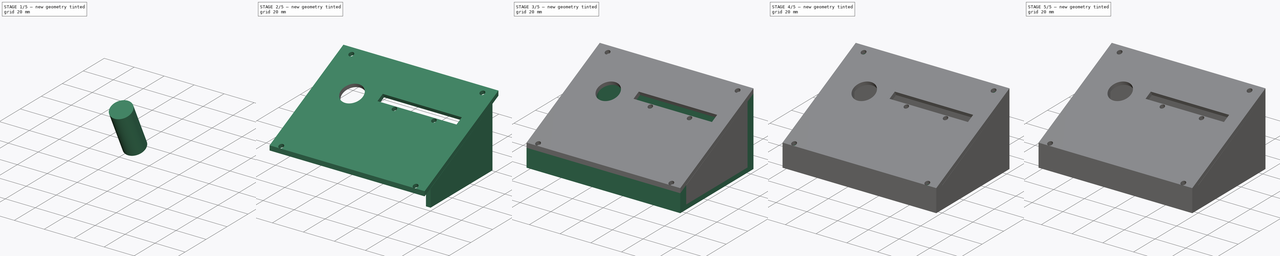
[diagram: build sequence overview — one tinted view per stage of 5, left to right]
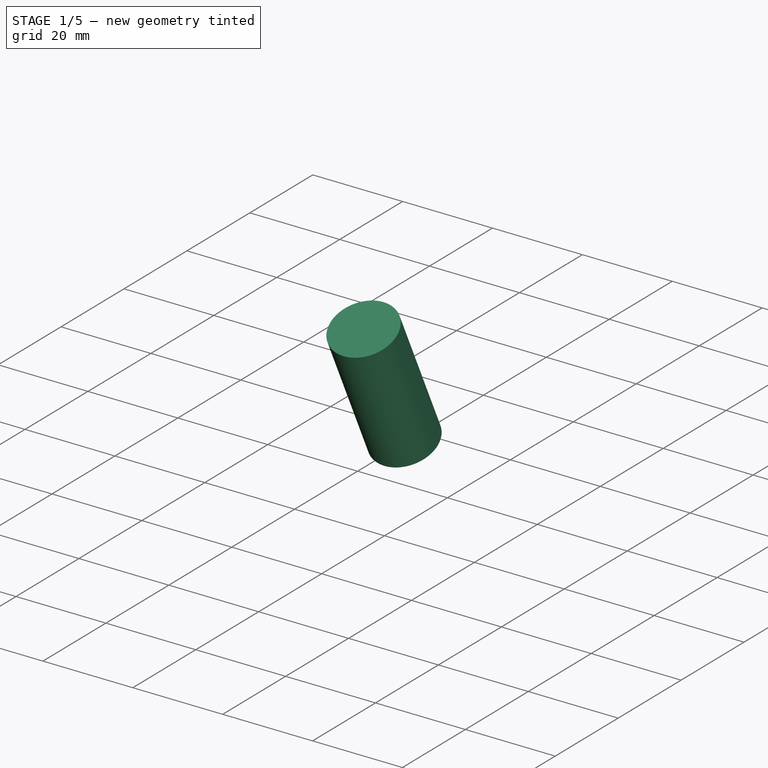
[diagram: stage 1 of 5 — iso view after this stage's code; geometry added in this stage tinted green]
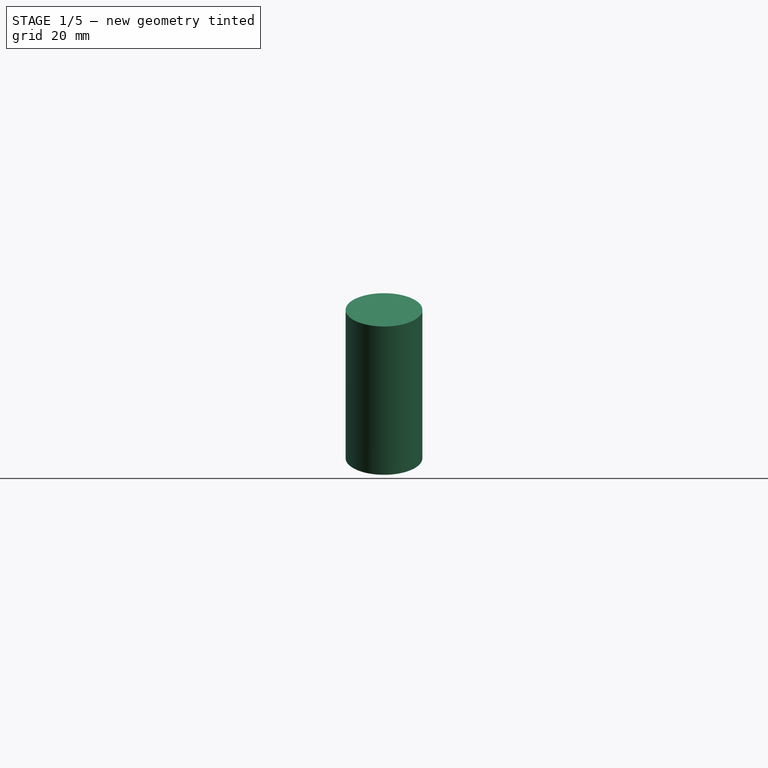
[diagram: stage 1 of 5 — front view after this stage's code; geometry added in this stage tinted green]
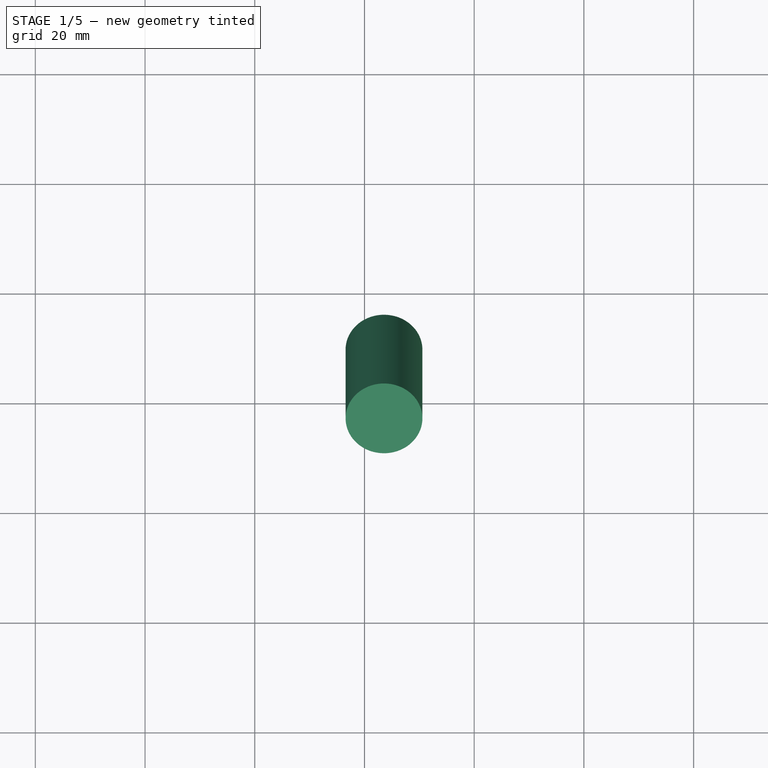
[diagram: stage 1 of 5 — top view after this stage's code; geometry added in this stage tinted green]
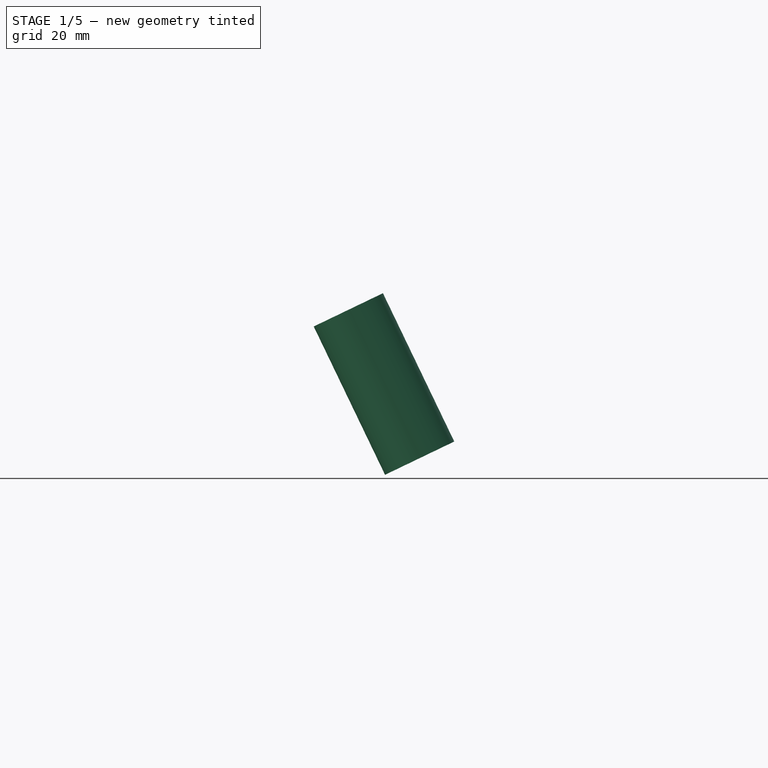
[diagram: stage 1 of 5 — right view after this stage's code; geometry added in this stage tinted green]
FCSTD DOCUMENT  (FreeCAD 0.20R29410 (Git))
Label: caja_botones
License: All rights reserved
LicenseURL: http://en.wikipedia.org/wiki/All_rights_reserved
objects: Part::Extrusion×11, Sketcher::SketchObject×10, Part::Cut×7, Part::MultiFuse×1, Part::Feature×1
note: 30 computed .brp shape members not serialized (recipe doc carries the construction recipe); baked Part::Feature solids carry a one-line shape summary decoded from their .brp

FEATURE [Sketcher::SketchObject] Sketch006
  FullyConstrained = false
  Placement = pos=(0,0,0) rot=(0.57735,0.57735,0.57735;2.0944rad)
  sketch-geometry (4):
    g0: LineSegment StartX=-65.4528 StartY=5.76 StartZ=0 EndX=2.54715 EndY=38.46 EndZ=0
    g1: LineSegment StartX=2.54715 StartY=38.46 StartZ=0 EndX=2.54715 EndY=41.46 EndZ=0
    g2: LineSegment StartX=2.54715 StartY=41.46 StartZ=0 EndX=-65.4528 EndY=8.76 EndZ=0
    g3: LineSegment StartX=-65.4528 StartY=8.76 StartZ=0 EndX=-65.4528 EndY=5.76 EndZ=0
  constraints (10):
    c: Coincident(g0,g1)
    c: Vertical(g1)
    c: Coincident(g1,g2)
    c: Coincident(g2,g3)
    c: Vertical(g3)
    c: Coincident(g0,g3)
    c: DistanceY(g-1,g0) = 38.46
    c: Parallel(g2,g0)
    c: Distance(g0,g-1) = 5.76
    c: DistanceY(g3,g3) = 3
FEATURE [Part::Extrusion] Extrude007
  Base = -> Sketch006
  Dir = (1,0,0)
  DirMode = 2
  FaceMakerClass = Part::FaceMakerBullseye
  LengthFwd = 100
  LengthRev = 0
  Solid = true
  Symmetric = false
FEATURE [Sketcher::SketchObject] Sketch007
  FullyConstrained = false
  MapMode = 5
  Placement = pos=(0,-15.7144,32.6783) rot=(1,0,0;0.448237rad)
  Support = -> [Extrude007]
  sketch-geometry (4):
    g0: Circle CenterX=92.3598 CenterY=15.964 CenterZ=0 NormalX=0 NormalY=0 NormalZ=1 AngleXU=0 Radius=1.6
    g1: Circle CenterX=7.88047 CenterY=15.8458 CenterZ=0 NormalX=0 NormalY=0 NormalZ=1 AngleXU=0 Radius=1.6
    g2: Circle CenterX=6.4889 CenterY=-53.5733 CenterZ=0 NormalX=0 NormalY=0 NormalZ=1 AngleXU=0 Radius=1.6
    g3: Circle CenterX=93.2182 CenterY=-53.6813 CenterZ=0 NormalX=0 NormalY=0 NormalZ=1 AngleXU=0 Radius=1.6
  constraints (2):
    c: Diameter(g0) = 3.2
    c: Equal(g0,g1) = 3.2
FEATURE [Part::Extrusion] Extrude008
  Base = -> Sketch007
  Dir = (0,-0.433377,0.901213)
  DirMode = 2
  FaceMakerClass = Part::FaceMakerBullseye
  LengthFwd = 10
  LengthRev = 0
  Solid = true
  Symmetric = true
FEATURE [Part::Cut] Cut004
  Base = -> Extrude007
  Tool = -> Extrude008
FEATURE [Sketcher::SketchObject] Sketch008
  FullyConstrained = false
  MapMode = 5
  Placement = pos=(0,-15.7144,32.6783) rot=(1,0,0;0.448237rad)
  Support = -> [Cut004]
  sketch-geometry (1):
    g0: Circle CenterX=23.5592 CenterY=-8.28634 CenterZ=0 NormalX=0 NormalY=0 NormalZ=1 AngleXU=0 Radius=7
  constraints (1):
    c: Diameter(g0) = 14
FEATURE [Part::Extrusion] Extrude009
  Base = -> Sketch008
  Dir = (0,-0.433377,0.901213)
  DirMode = 2
  FaceMakerClass = Part::FaceMakerBullseye
  LengthFwd = -30
  LengthRev = 0
  Solid = true
  Symmetric = false
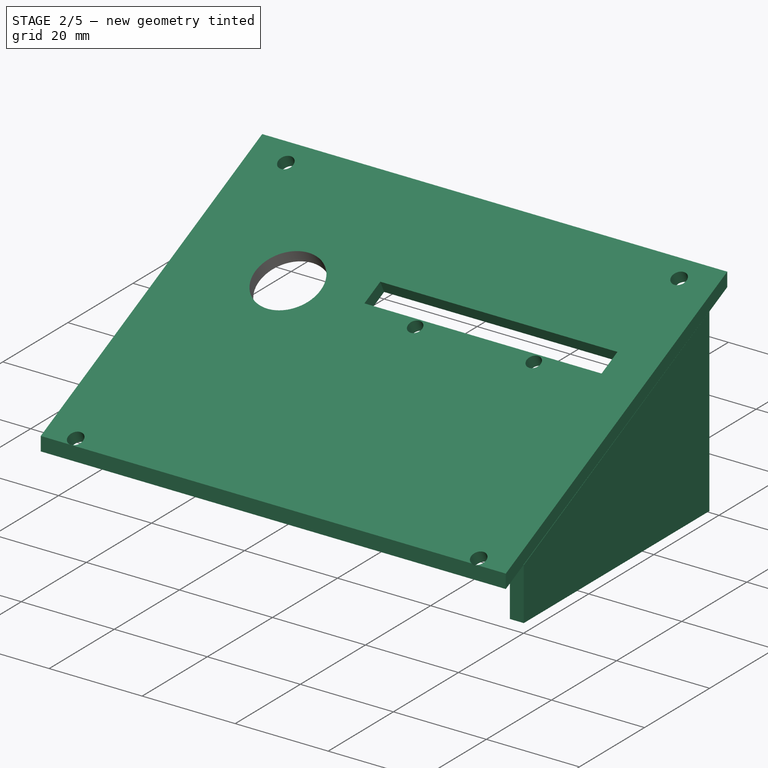
[diagram: stage 2 of 5 — iso view after this stage's code; geometry added in this stage tinted green]
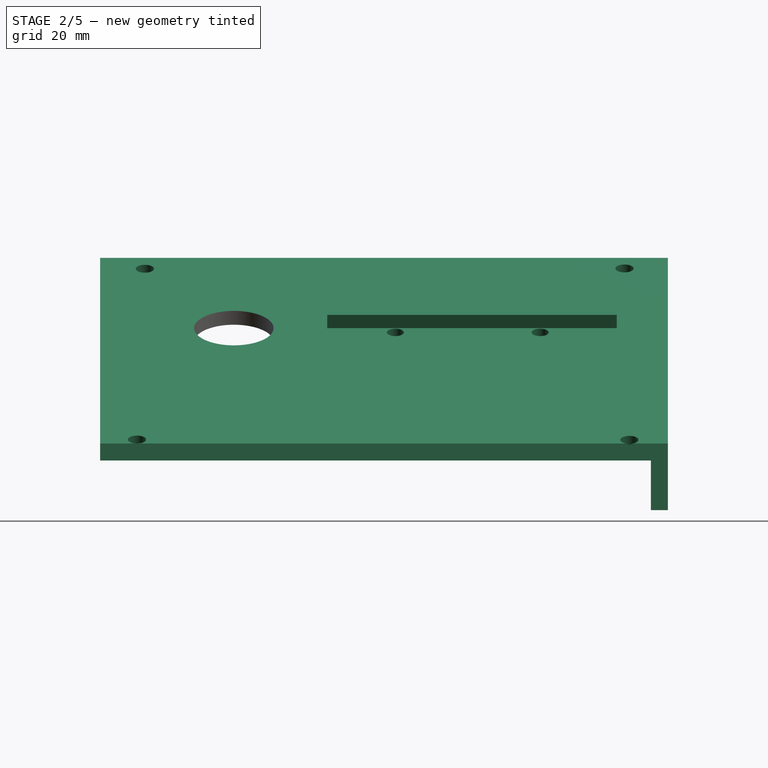
[diagram: stage 2 of 5 — front view after this stage's code; geometry added in this stage tinted green]
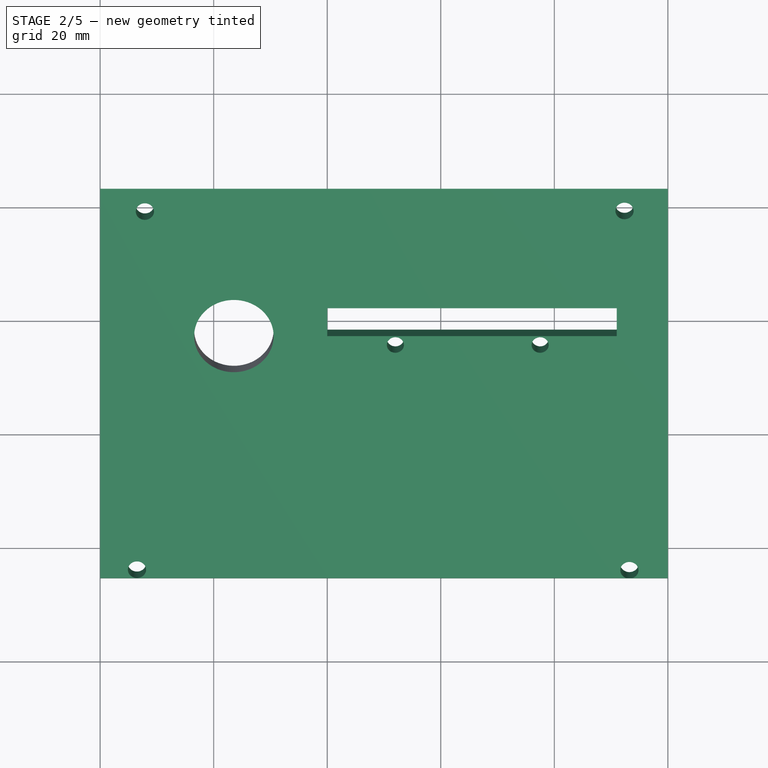
[diagram: stage 2 of 5 — top view after this stage's code; geometry added in this stage tinted green]
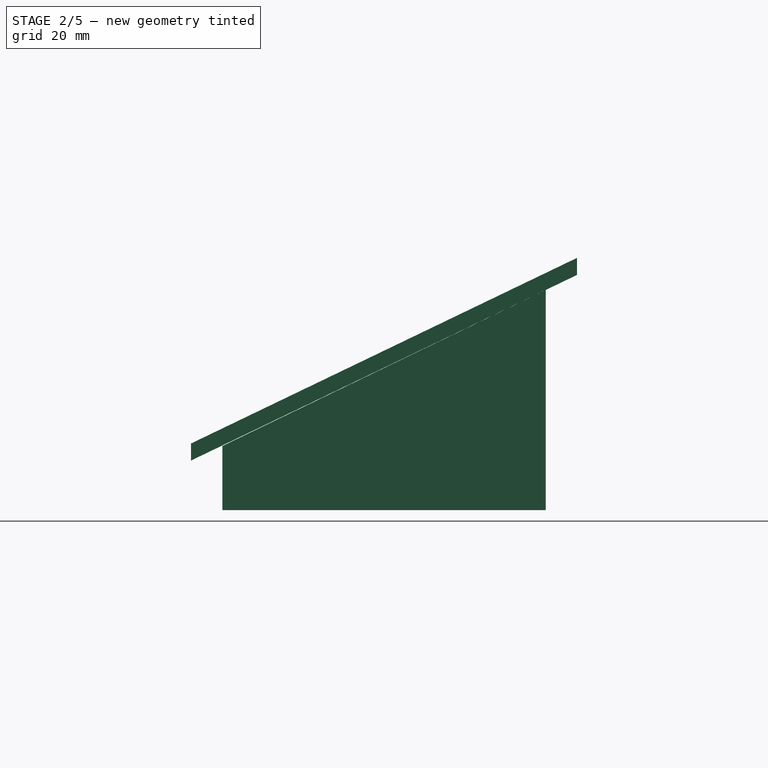
[diagram: stage 2 of 5 — right view after this stage's code; geometry added in this stage tinted green]
FEATURE [Part::Extrusion] Extrude002
  Base = -> Sketch001
  Dir = (1,0,0)
  DirMode = 2
  FaceMakerClass = Part::FaceMakerBullseye
  LengthFwd = 3
  LengthRev = 0
  Placement = pos=(97,0,0) rot=(0,0,1;0rad)
  Solid = true
  Symmetric = false
FEATURE [Part::Cut] Cut005
  Base = -> Cut004
  Tool = -> Extrude009
FEATURE [Part::Feature] Solid  label="risk1E78E08Bni4a"
  Placement = pos=(51.5,-20.4263,29.6491) rot=(1,0,0;0.453786rad)
  shape: bbox 4.95 x 5.307 x 3.718 mm, 58 faces (baked)
FEATURE [Sketcher::SketchObject] Sketch009
  FullyConstrained = false
  MapMode = 5
  Placement = pos=(0,-15.7144,32.6783) rot=(1,0,0;0.448237rad)
  Support = -> [Cut005]
  sketch-geometry (7):
    g0: LineSegment StartX=40 StartY=-2.88 StartZ=0 EndX=91 EndY=-2.88 EndZ=0
    g1: LineSegment StartX=91 StartY=-2.88 StartZ=0 EndX=91 EndY=-8.29 EndZ=0
    g2: LineSegment StartX=91 StartY=-8.29 StartZ=0 EndX=40 EndY=-8.29 EndZ=0
    g3: LineSegment StartX=40 StartY=-8.29 StartZ=0 EndX=40 EndY=-2.88 EndZ=0
    g4: Circle CenterX=52 CenterY=-10.02 CenterZ=0 NormalX=0 NormalY=0 NormalZ=1 AngleXU=0 Radius=1.5
    g5: LineSegment StartX=40 StartY=-2.88 StartZ=0 EndX=40 EndY=-16.1899 EndZ=0
    g6: Circle CenterX=77.5 CenterY=-10.02 CenterZ=0 NormalX=0 NormalY=0 NormalZ=1 AngleXU=0 Radius=1.5
  constraints (20):
    c: Coincident(g0,g1)
    c: Coincident(g1,g2)
    c: Coincident(g2,g3)
    c: Coincident(g3,g0)
    c: Horizontal(g0)
    c: Horizontal(g2)
    c: Vertical(g1)
    c: Vertical(g3)
    c: DistanceX(g0,g0) = 51
    c: DistanceY(g1,g1) = 5.41
    c: DistanceY(g-1,g0) = -2.88
    c: DistanceX(g-2,g0) = 40
    c: Diameter(g4) = 3
    c: Coincident(g5,g0)
    c: Vertical(g5)
    c: Distance(g4,g5) = 12
    c: Equal(g4,g6) = 3
    c: DistanceX(g4,g6) = 25.5
    c: DistanceY(g-1,g4) = -10.02
    c: DistanceY(g-1,g6) = -10.02
FEATURE [Part::Extrusion] Extrude010
  Base = -> Sketch009
  Dir = (0,-0.433377,0.901213)
  DirMode = 2
  FaceMakerClass = Part::FaceMakerBullseye
  LengthFwd = 10
  LengthRev = 0
  Solid = true
  Symmetric = true
FEATURE [Part::Cut] Cut006  label="Tapa"
  Base = -> Cut005
  Tool = -> Extrude010
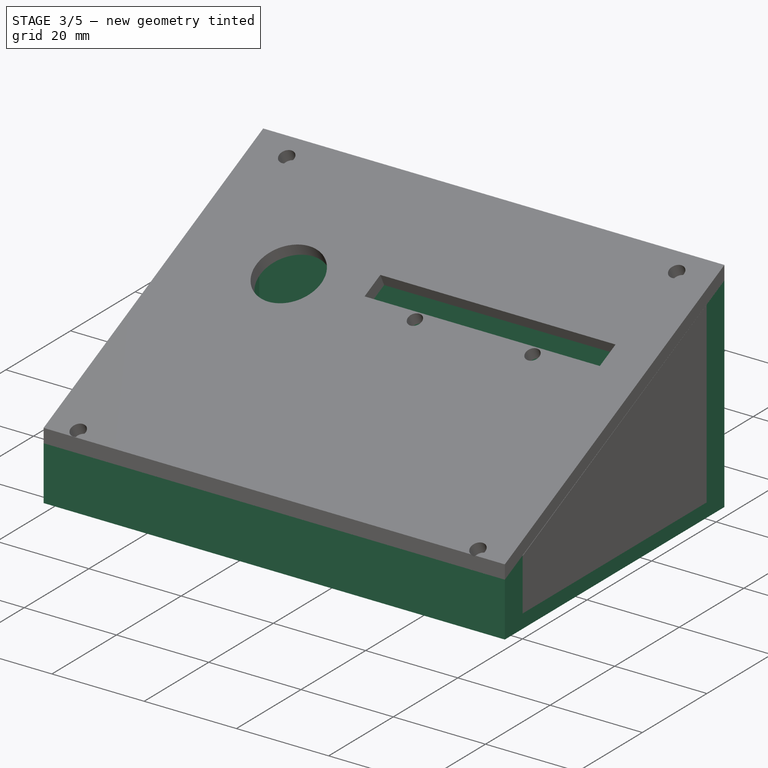
[diagram: stage 3 of 5 — iso view after this stage's code; geometry added in this stage tinted green]
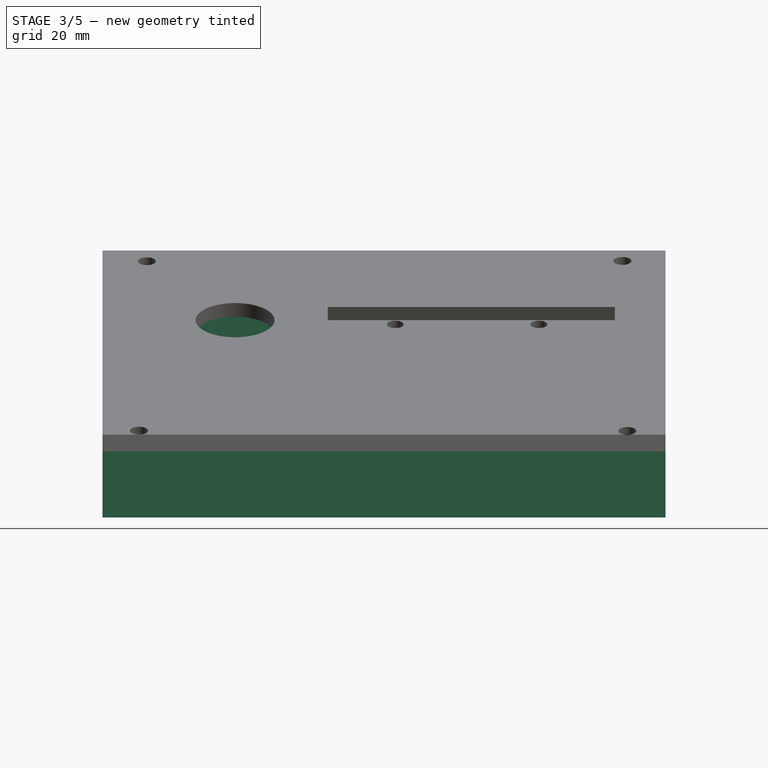
[diagram: stage 3 of 5 — front view after this stage's code; geometry added in this stage tinted green]
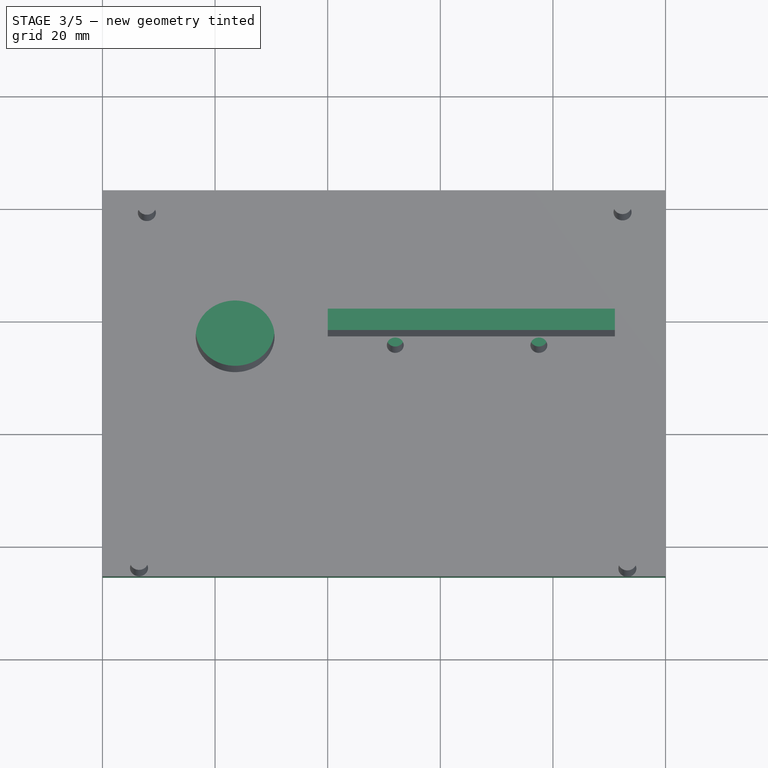
[diagram: stage 3 of 5 — top view after this stage's code; geometry added in this stage tinted green]
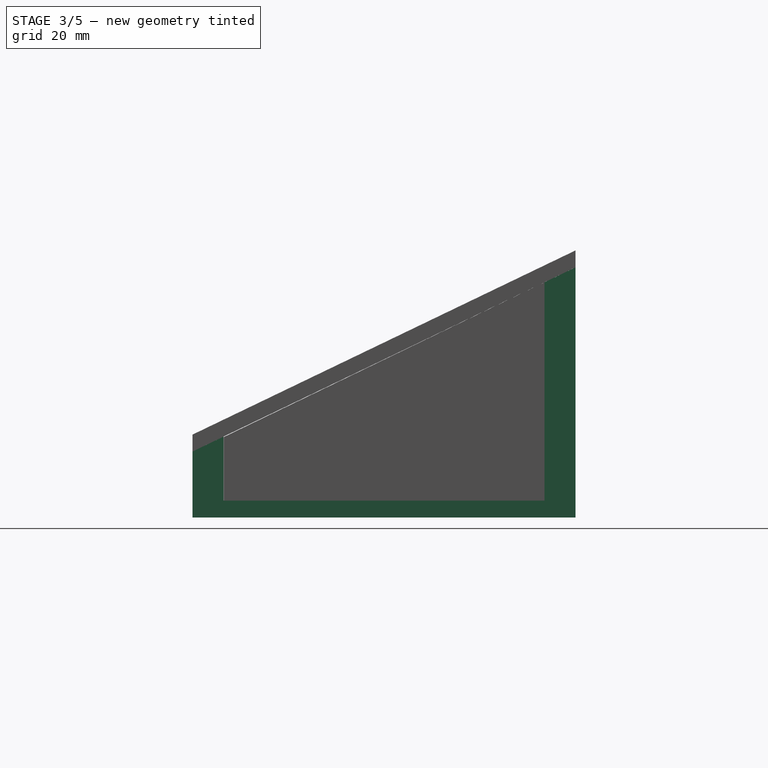
[diagram: stage 3 of 5 — right view after this stage's code; geometry added in this stage tinted green]
FEATURE [Sketcher::SketchObject] Sketch
  FullyConstrained = false
  Placement = pos=(0,0,0) rot=(0.57735,0.57735,0.57735;2.0944rad)
  sketch-geometry (10):
    g0: LineSegment StartX=-65.4528 StartY=5.75926 StartZ=0 EndX=-65.4528 EndY=-5.96946 EndZ=0
    g1: LineSegment StartX=-65.4528 StartY=-5.96946 StartZ=0 EndX=2.54718 EndY=-5.96946 EndZ=0
    g2: LineSegment StartX=2.54718 StartY=-5.96946 StartZ=0 EndX=2.54718 EndY=38.4551 EndZ=0
    g3: LineSegment StartX=2.54718 StartY=38.4551 StartZ=0 EndX=-65.4528 EndY=5.75926 EndZ=0
    g4: LineSegment StartX=-22.5345 StartY=26.3953 StartZ=0 EndX=-9.53453 EndY=-0.641734 EndZ=0
    g5: LineSegment StartX=-65.4528 StartY=5.75926 StartZ=0 EndX=-59.9528 EndY=8.40377 EndZ=0
    g6: LineSegment StartX=-59.9528 StartY=-2.96946 StartZ=0 EndX=-2.95282 EndY=-2.96946 EndZ=0
    g7: LineSegment StartX=-2.95282 StartY=-2.96946 StartZ=0 EndX=-2.95282 EndY=35.8106 EndZ=0
    g8: LineSegment StartX=-2.95282 StartY=35.8106 StartZ=0 EndX=2.54718 EndY=38.4551 EndZ=0
    g9: LineSegment StartX=-59.9528 StartY=8.40377 StartZ=0 EndX=-59.9528 EndY=-2.96946 EndZ=0
  constraints (25):
    c: Vertical(g0)
    c: Coincident(g0,g1)
    c: Horizontal(g1)
    c: Coincident(g1,g2)
    c: Vertical(g2)
    c: Coincident(g2,g3)
    c: Coincident(g3,g0)
    c: DistanceX(g1,g1) = 68
    c: PointOnObject(g4,g3)
    c: Perpendicular(g4,g3)
    c: Distance(g4) = 30
    c: Coincident(g0,g5)
    c: Horizontal(g6)
    c: Coincident(g6,g7)
    c: Vertical(g7)
    c: Coincident(g7,g8)
    c: Coincident(g8,g2)
    c: PointOnObject(g5,g3)
    c: Coincident(g9,g5)
    c: Coincident(g9,g6)
    c: Vertical(g9)
    c: PointOnObject(g7,g3)
    c: Distance(g7,g2) = 5.5
    c: Distance(g0,g9) = 5.5
    c: Distance(g6,g1) = 3
FEATURE [Part::Extrusion] Extrude
  Base = -> Sketch
  Dir = (1,0,0)
  DirMode = 2
  FaceMakerClass = Part::FaceMakerBullseye
  LengthFwd = 100
  LengthRev = 0
  Solid = true
  Symmetric = false
FEATURE [Sketcher::SketchObject] Sketch001
  FullyConstrained = false
  Placement = pos=(0,0,0) rot=(0.57735,0.57735,0.57735;2.0944rad)
  sketch-geometry (4):
    g0: LineSegment StartX=-59.9315 StartY=8.31611 StartZ=0 EndX=-59.9315 EndY=-2.96946 EndZ=0
    g1: LineSegment StartX=-59.9315 StartY=-2.96946 StartZ=0 EndX=-2.95264 EndY=-2.96946 EndZ=0
    g2: LineSegment StartX=-2.95264 StartY=-2.96946 StartZ=0 EndX=-2.95264 EndY=35.8106 EndZ=0
    g3: LineSegment StartX=-2.95264 StartY=35.8106 StartZ=0 EndX=-59.9315 EndY=8.31611 EndZ=0
  constraints (7):
    c: Vertical(g0)
    c: Coincident(g0,g1)
    c: Horizontal(g1)
    c: Coincident(g1,g2)
    c: Vertical(g2)
    c: Coincident(g2,g3)
    c: Coincident(g3,g0)
FEATURE [Part::Extrusion] Extrude001
  Base = -> Sketch001
  Dir = (1,0,0)
  DirMode = 2
  FaceMakerClass = Part::FaceMakerBullseye
  LengthFwd = 3
  LengthRev = 0
  Solid = true
  Symmetric = false
FEATURE [Part::MultiFuse] Fusion
  Shapes = -> [Extrude,Extrude002,Extrude001]
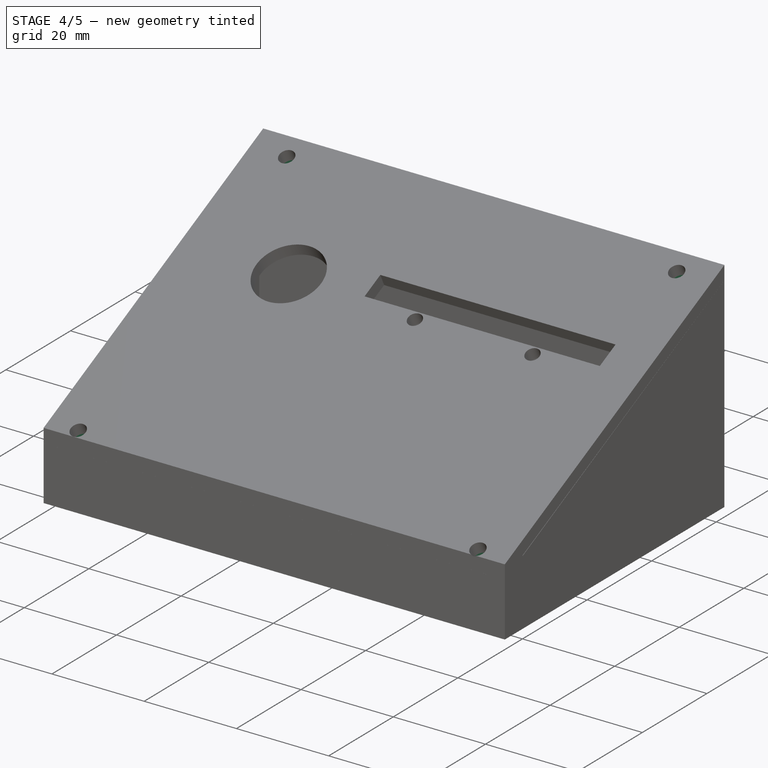
[diagram: stage 4 of 5 — iso view after this stage's code; geometry added in this stage tinted green]
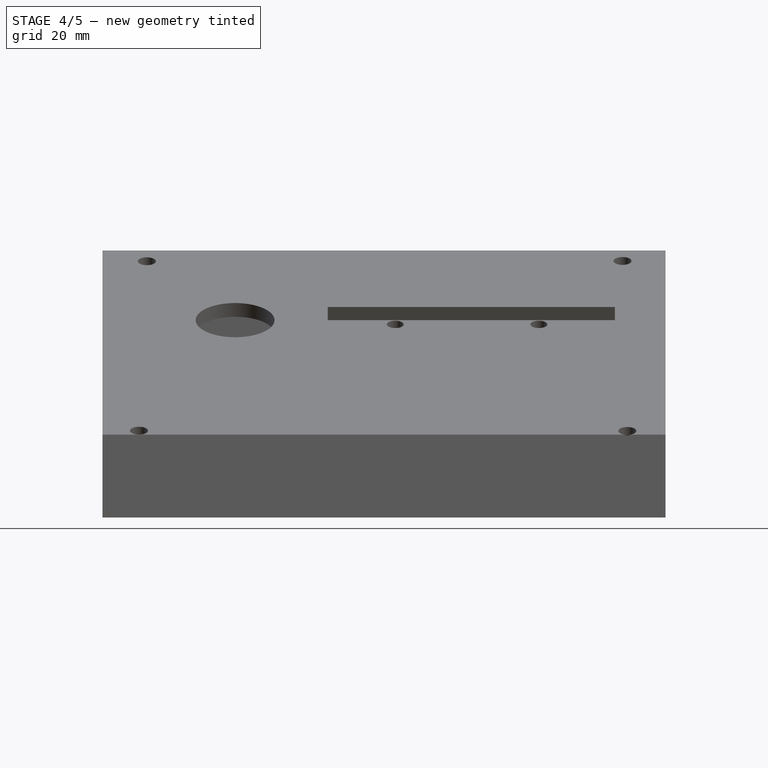
[diagram: stage 4 of 5 — front view after this stage's code; geometry added in this stage tinted green]
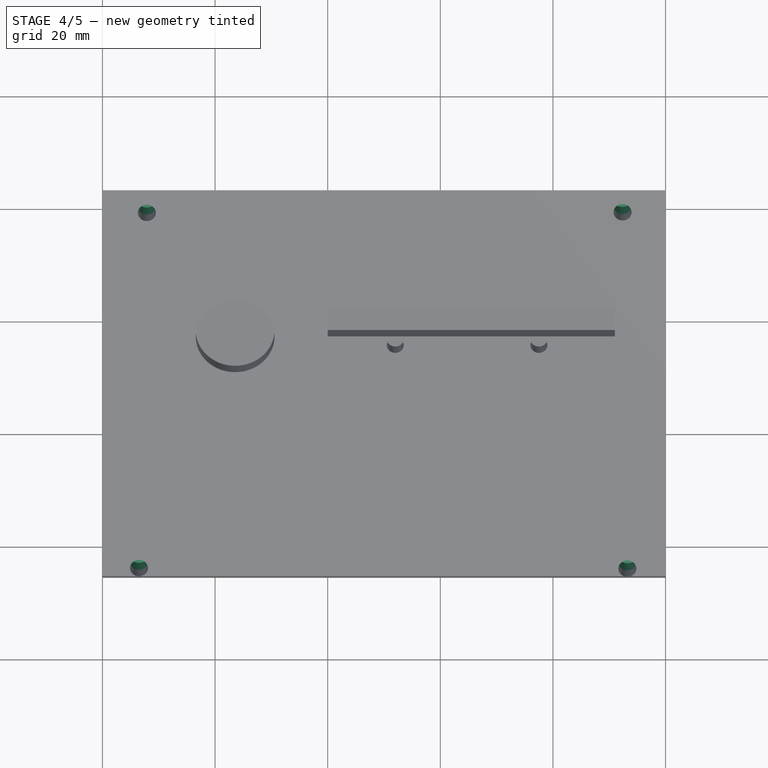
[diagram: stage 4 of 5 — top view after this stage's code; geometry added in this stage tinted green]
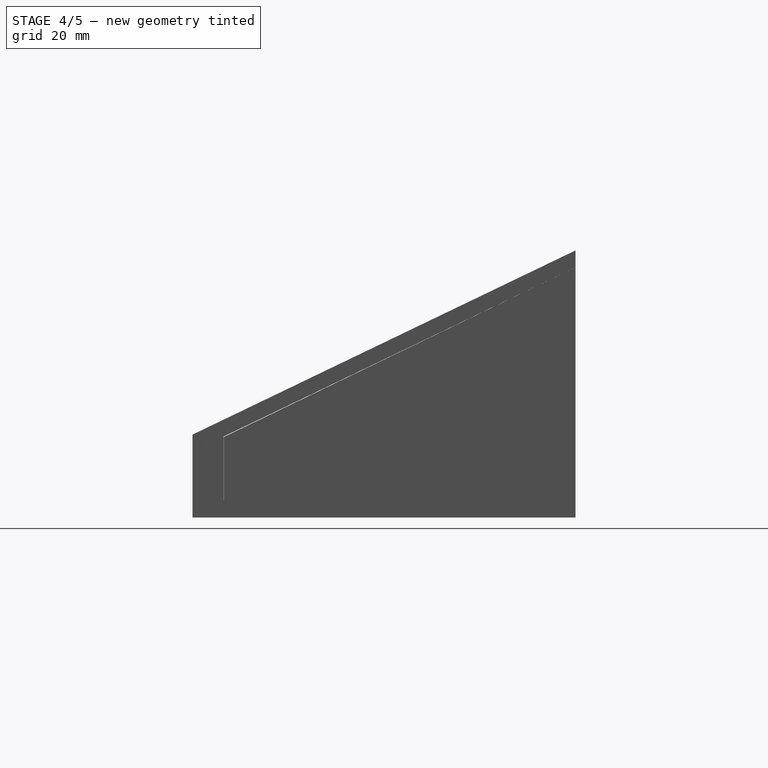
[diagram: stage 4 of 5 — right view after this stage's code; geometry added in this stage tinted green]
FEATURE [Sketcher::SketchObject] Sketch002
  FullyConstrained = false
  MapMode = 5
  Placement = pos=(0,-14.5397,30.2394) rot=(1,0,0;0.448187rad)
  Support = -> [Extrude]
  sketch-geometry (2):
    g0: Circle CenterX=7.86766 CenterY=15.8652 CenterZ=0 NormalX=0 NormalY=0 NormalZ=1 AngleXU=0 Radius=2.05
    g1: Circle CenterX=92.3332 CenterY=15.9932 CenterZ=0 NormalX=0 NormalY=0 NormalZ=1 AngleXU=0 Radius=2.05
  constraints (2):
    c: Diameter(g0) = 4.1
    c: Equal(g0,g1) = 4.1
FEATURE [Part::Extrusion] Extrude003
  Base = -> Sketch002
  Dir = (0,-0.433332,0.901234)
  DirMode = 2
  FaceMakerClass = Part::FaceMakerBullseye
  LengthFwd = -4
  LengthRev = 0
  Solid = true
  Symmetric = false
FEATURE [Part::Cut] Cut
  Base = -> Fusion
  Tool = -> Extrude003
FEATURE [Sketcher::SketchObject] Sketch003
  FullyConstrained = false
  MapMode = 5
  Placement = pos=(0,-14.5397,30.2394) rot=(1,0,0;0.448187rad)
  Support = -> [Cut]
  sketch-geometry (2):
    g0: Circle CenterX=6.4694 CenterY=-53.575 CenterZ=0 NormalX=0 NormalY=0 NormalZ=1 AngleXU=0 Radius=2.05
    g1: Circle CenterX=93.2534 CenterY=-53.6659 CenterZ=0 NormalX=0 NormalY=0 NormalZ=1 AngleXU=0 Radius=2.05
  constraints (2):
    c: Diameter(g0) = 4.1
    c: Equal(g0,g1) = 4.1
FEATURE [Part::Extrusion] Extrude004
  Base = -> Sketch003
  Dir = (0,-0.433332,0.901234)
  DirMode = 2
  FaceMakerClass = Part::FaceMakerBullseye
  LengthFwd = -4
  LengthRev = 0
  Solid = true
  Symmetric = false
FEATURE [Part::Cut] Cut001
  Base = -> Cut
  Tool = -> Extrude004
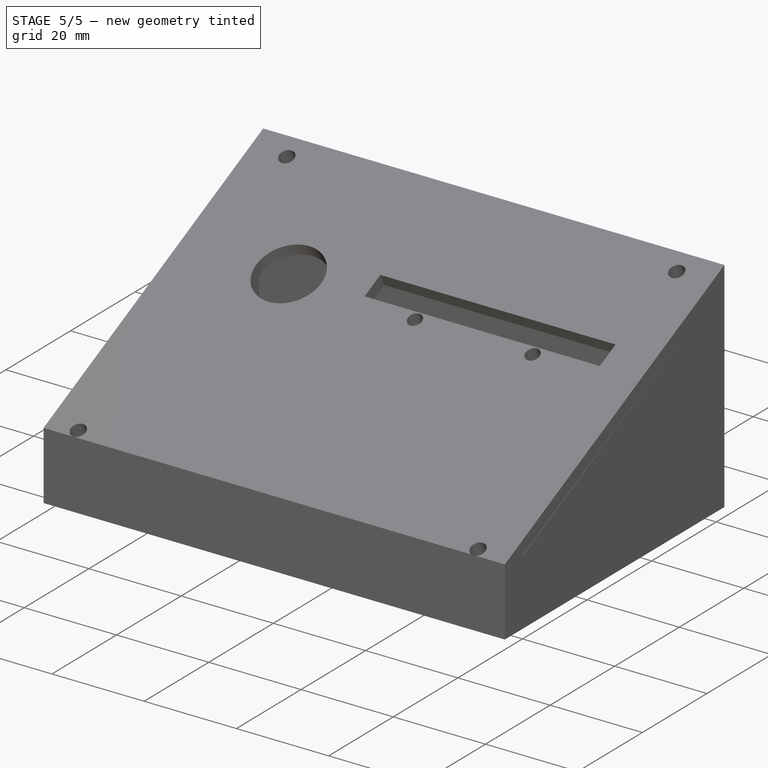
[diagram: stage 5 of 5 — iso view after this stage's code; geometry added in this stage tinted green]
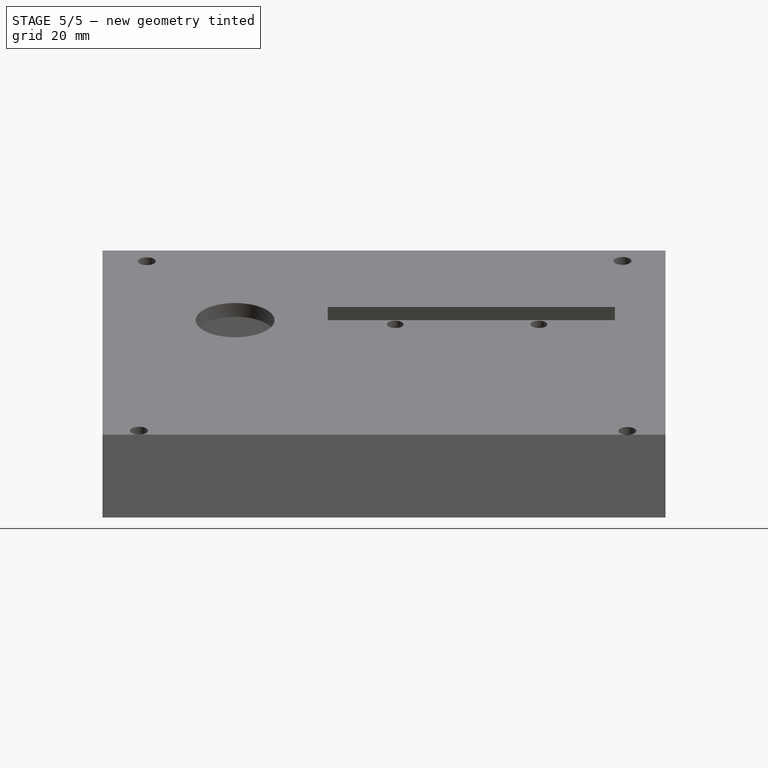
[diagram: stage 5 of 5 — front view after this stage's code; geometry added in this stage tinted green]
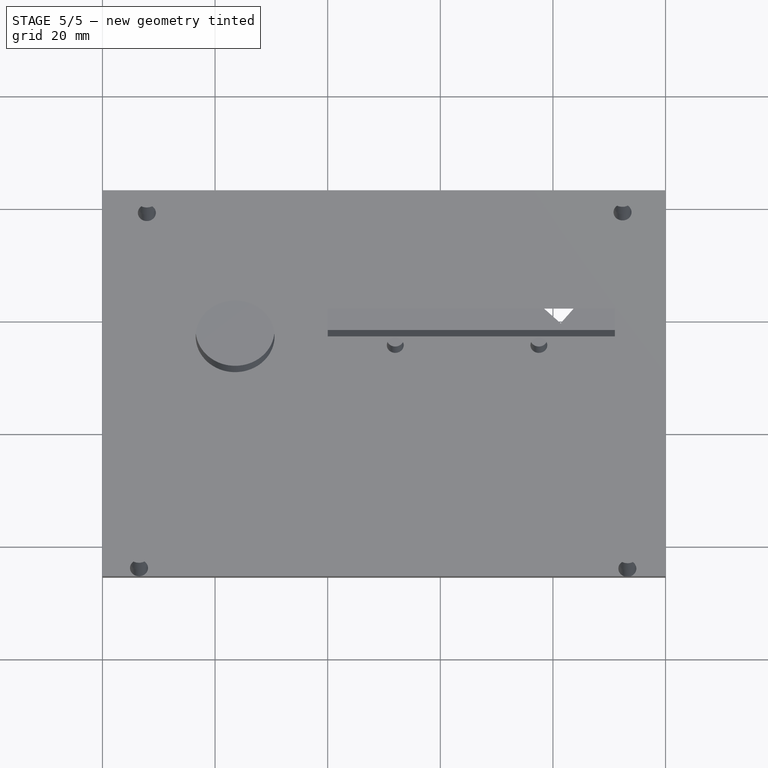
[diagram: stage 5 of 5 — top view after this stage's code; geometry added in this stage tinted green]
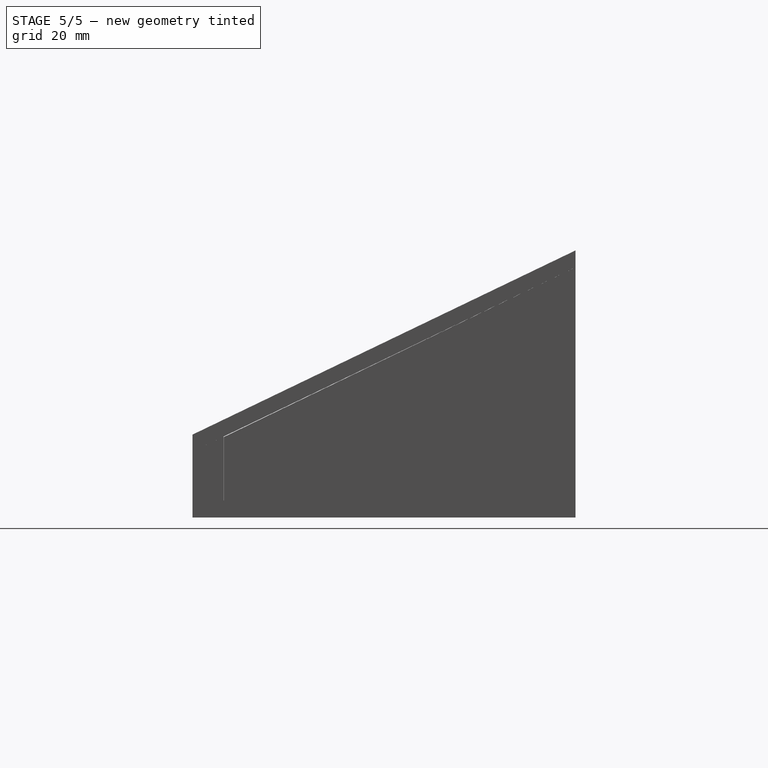
[diagram: stage 5 of 5 — right view after this stage's code; geometry added in this stage tinted green]
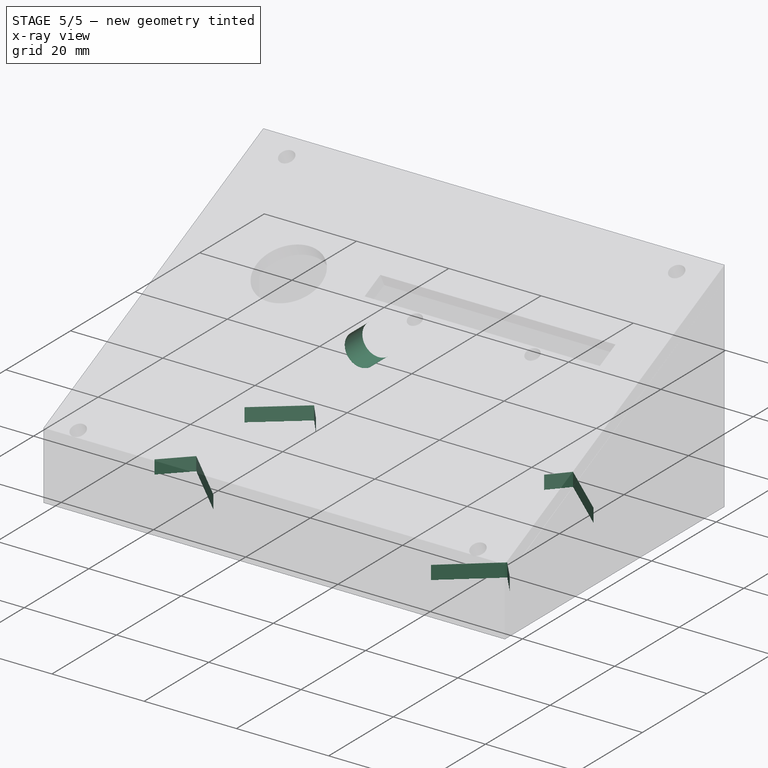
[diagram: stage 5 of 5 — x-ray composite at the iso view; earlier geometry ghosted, this stage's added geometry solid]
FEATURE [Sketcher::SketchObject] Sketch004
  FullyConstrained = false
  MapMode = 5
  Placement = pos=(0,2.54718,0) rot=(0,0.707107,0.707107;3.14159rad)
  Support = -> [Cut001]
  sketch-geometry (1):
    g0: Circle CenterX=-25.0113 CenterY=6.8536 CenterZ=0 NormalX=0 NormalY=0 NormalZ=1 AngleXU=0 Radius=3.5
  constraints (1):
    c: Diameter(g0) = 7
FEATURE [Part::Extrusion] Extrude005
  Base = -> Sketch004
  Dir = (0,1,-2e-16)
  DirMode = 2
  FaceMakerClass = Part::FaceMakerBullseye
  LengthFwd = 20
  LengthRev = 0
  Solid = true
  Symmetric = true
FEATURE [Part::Cut] Cut002
  Base = -> Cut001
  Tool = -> Extrude005
FEATURE [Sketcher::SketchObject] Sketch005
  FullyConstrained = false
  MapMode = 5
  Placement = pos=(0,0,-2.96946) rot=(0,0,1;0rad)
  Support = -> [Cut002]
  sketch-geometry (17):
    g0: LineSegment StartX=9.78882 StartY=-17.2875 StartZ=0 EndX=13.3817 EndY=-21.7699 EndZ=0
    g1: LineSegment StartX=13.3817 StartY=-21.7699 StartZ=0 EndX=23.066 EndY=-14.0074 EndZ=0
    g2: LineSegment StartX=23.066 StartY=-14.0074 StartZ=0 EndX=19.4731 EndY=-9.525 EndZ=0
    g3: LineSegment StartX=19.4731 StartY=-9.525 StartZ=0 EndX=9.78882 EndY=-17.2875 EndZ=0
    g4: LineSegment StartX=74.9357 StartY=-52.5556 StartZ=0 EndX=78.7066 EndY=-57.1399 EndZ=0
    g5: LineSegment StartX=78.7066 StartY=-57.1399 StartZ=0 EndX=89.207 EndY=-48.5026 EndZ=0
    g6: LineSegment StartX=89.207 StartY=-48.5026 StartZ=0 EndX=85.4362 EndY=-43.9183 EndZ=0
    g7: LineSegment StartX=85.4362 StartY=-43.9183 StartZ=0 EndX=74.9357 EndY=-52.5556 EndZ=0
    g8: LineSegment StartX=-17.9815 StartY=-30.3293 StartZ=0 EndX=118.506 EndY=-30.3293 EndZ=0
    g9: LineSegment StartX=9.27418 StartY=-44.4397 StartZ=0 EndX=14.5859 EndY=-39.0043 EndZ=0
    g10: LineSegment StartX=14.5859 StartY=-39.0043 StartZ=0 EndX=26.3297 EndY=-50.4808 EndZ=0
    g11: LineSegment StartX=26.3297 StartY=-50.4808 StartZ=0 EndX=21.018 EndY=-55.9162 EndZ=0
    g12: LineSegment StartX=21.018 StartY=-55.9162 StartZ=0 EndX=9.27418 EndY=-44.4397 EndZ=0
    g13: LineSegment StartX=69.685 StartY=-9.98108 StartZ=0 EndX=73.1704 EndY=-6.03496 EndZ=0
    g14: LineSegment StartX=73.1704 StartY=-6.03496 StartZ=0 EndX=84.8573 EndY=-16.3574 EndZ=0
    g15: LineSegment StartX=84.8573 StartY=-16.3574 StartZ=0 EndX=81.3719 EndY=-20.3035 EndZ=0
    g16: LineSegment StartX=81.3719 StartY=-20.3035 StartZ=0 EndX=69.685 EndY=-9.98108 EndZ=0
  constraints (30):
    c: Coincident(g0,g1)
    c: Coincident(g1,g2)
    c: Coincident(g2,g3)
    c: Coincident(g3,g0)
    c: Perpendicular(g2,g3)
    c: Perpendicular(g1,g0)
    c: Parallel(g2,g0)
    c: Parallel(g3,g1)
    c: Coincident(g4,g5)
    c: Coincident(g5,g6)
    c: Coincident(g6,g7)
    c: Coincident(g7,g4)
    c: Perpendicular(g6,g7)
    c: Perpendicular(g5,g4)
    c: Parallel(g6,g4)
    c: Horizontal(g8)
    c: Coincident(g9,g10)
    c: Coincident(g10,g11)
    c: Coincident(g11,g12)
    c: Coincident(g12,g9)
    c: Perpendicular(g11,g12)
    c: Perpendicular(g10,g9)
    c: Parallel(g11,g9)
    c: Coincident(g13,g14)
    c: Coincident(g14,g15)
    c: Coincident(g15,g16)
    c: Coincident(g16,g13)
    c: Perpendicular(g15,g16)
    c: Perpendicular(g14,g13)
    c: Parallel(g15,g13)
FEATURE [Part::Extrusion] Extrude006
  Base = -> Sketch005
  Dir = (0,0,1)
  DirMode = 2
  FaceMakerClass = Part::FaceMakerBullseye
  LengthFwd = 15
  LengthRev = 0
  Solid = true
  Symmetric = true
FEATURE [Part::Cut] Cut003  label="Caja"
  Base = -> Cut002
  Tool = -> Extrude006
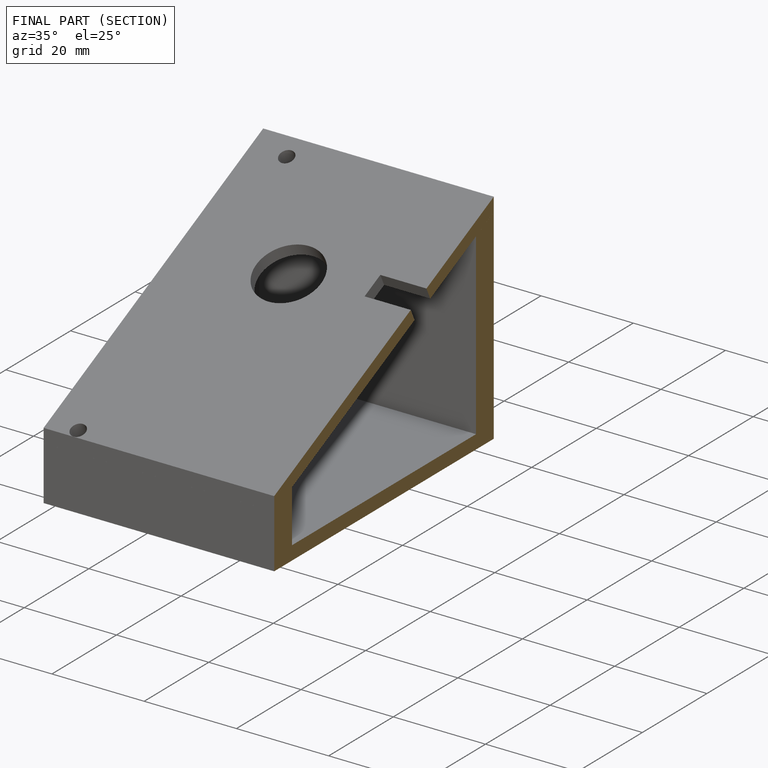
[diagram: finished part — half-section view (interior)]
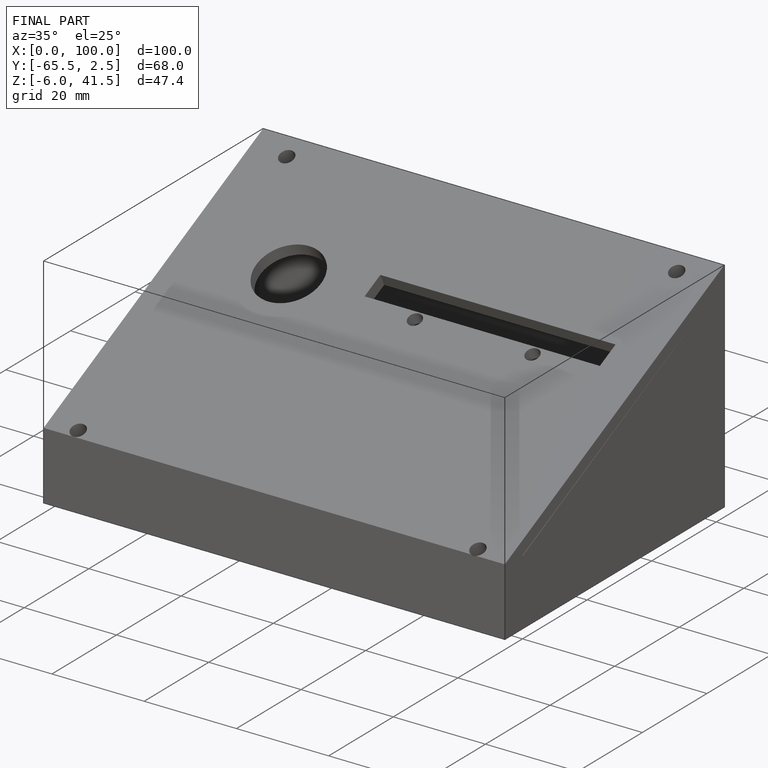
[diagram: finished part — iso view with bounding-box wireframe]
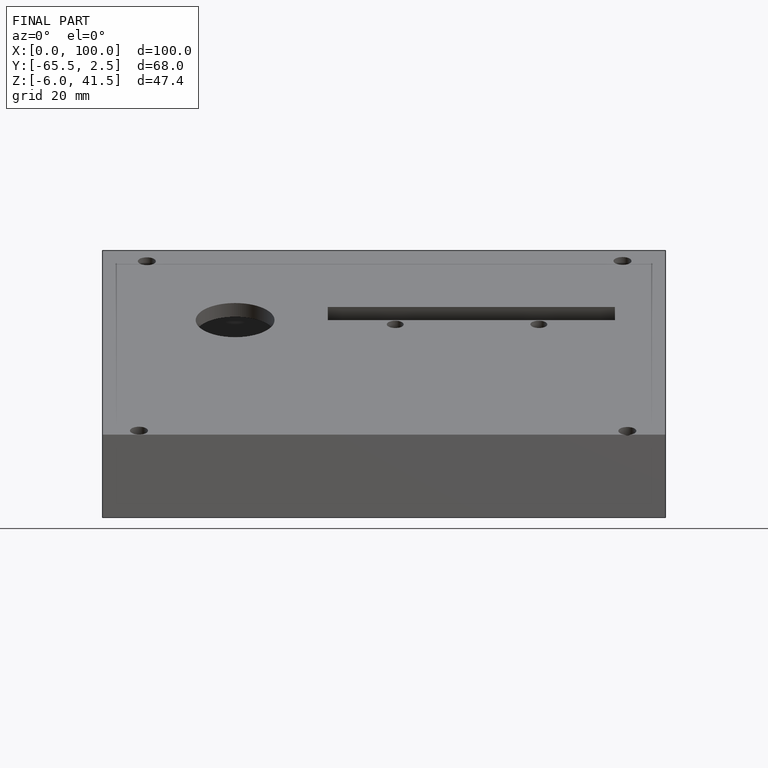
[diagram: finished part — front view with bounding-box wireframe]
